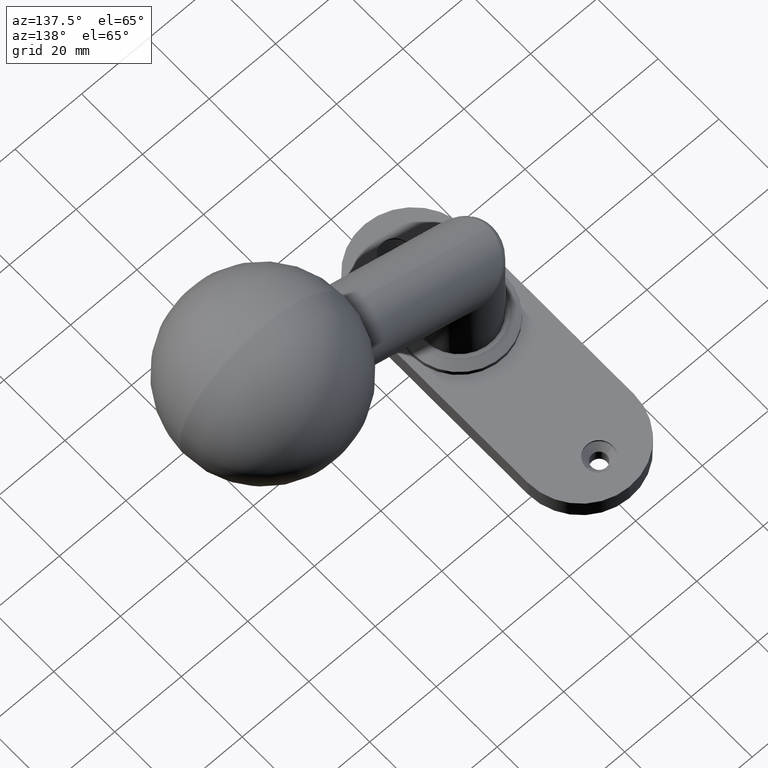
[diagram: clean part render]
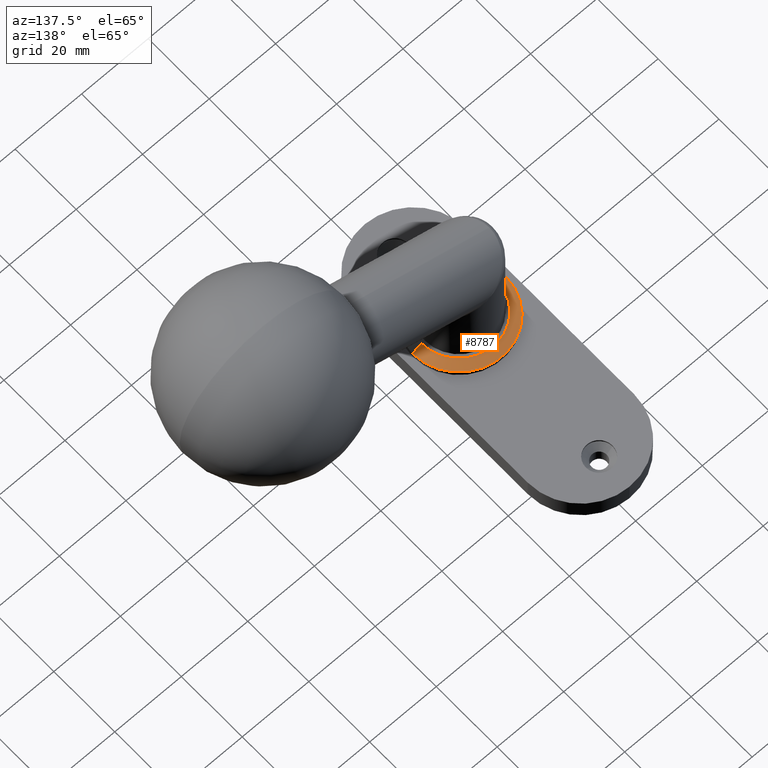
[diagram: same view with one face highlighted and labeled with its STEP entity id]
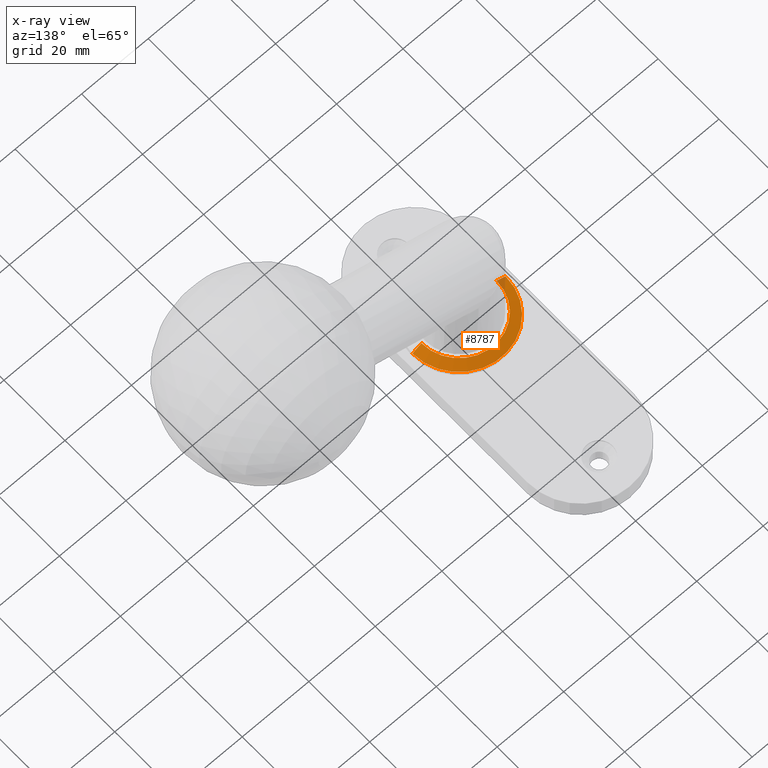
[diagram: x-ray of the same camera — body ghosted, the highlighted face saturated]
A machine part, auxiliary view. The second image highlights one B-rep face of the part: STEP entity #8787.
The next image is the same camera in x-ray: the body ghosted, the highlighted face saturated — about 3% of this face is hidden behind the body in this view.
In plain terms, the highlighted conical surface has half-angle 60.945 deg.
Its self-contained STEP definition (entity closure, byte-faithful):
#128 = CARTESIAN_POINT ( 'NONE',  ( 0.000000000000000000, 0.000000000000000000, 3.000000000000000000 ) ) ;
#668 = EDGE_CURVE ( 'NONE', #16286, #10250, #800, .T. ) ;
#799 = ORIENTED_EDGE ( 'NONE', *, *, #4505, .F. ) ;
#800 = LINE ( 'NONE', #13007, #1209 ) ;
#1130 = CARTESIAN_POINT ( 'NONE',  ( 0.000000000000000000, 0.000000000000000000, 1.500000000000000000 ) ) ;
#1209 = VECTOR ( 'NONE', #9092, 1000.000000000000114 ) ;
#2533 = LINE ( 'NONE', #14199, #11509 ) ;
#3865 = ORIENTED_EDGE ( 'NONE', *, *, #668, .T. ) ;
#4505 = EDGE_CURVE ( 'NONE', #5170, #11387, #2533, .T. ) ;
#4835 = CARTESIAN_POINT ( 'NONE',  ( -11.30000000000000071, 0.000000000000000000, 3.000000000000000000 ) ) ;
#5060 = DIRECTION ( 'NONE',  ( -0.000000000000000000, -0.000000000000000000, -1.000000000000000000 ) ) ;
#5170 = VERTEX_POINT ( 'NONE', #4835 ) ;
#5872 = AXIS2_PLACEMENT_3D ( 'NONE', #128, #9176, #6605 ) ;
#6605 = DIRECTION ( 'NONE',  ( -1.000000000000000000, 0.000000000000000000, 0.000000000000000000 ) ) ;
#7718 = DIRECTION ( 'NONE',  ( -1.000000000000000000, 0.000000000000000000, 0.000000000000000000 ) ) ;
#7827 = DIRECTION ( 'NONE',  ( -0.000000000000000000, -0.000000000000000000, -1.000000000000000000 ) ) ;
#7931 = CARTESIAN_POINT ( 'NONE',  ( -14.00000000000000000, 0.000000000000000000, 1.500000000000000000 ) ) ;
#8616 = ORIENTED_EDGE ( 'NONE', *, *, #12722, .F. ) ;
#8787 = ADVANCED_FACE ( 'NONE', ( #14474 ), #13451, .T. ) ;
#9092 = DIRECTION ( 'NONE',  ( 0.8741572761215375964, 1.070533910153610051E-16, -0.4856429311786321645 ) ) ;
#9176 = DIRECTION ( 'NONE',  ( -0.000000000000000000, -0.000000000000000000, -1.000000000000000000 ) ) ;
#10250 = VERTEX_POINT ( 'NONE', #14853 ) ;
#11387 = VERTEX_POINT ( 'NONE', #7931 ) ;
#11509 = VECTOR ( 'NONE', #12892, 1000.000000000000114 ) ;
#12329 = AXIS2_PLACEMENT_3D ( 'NONE', #15573, #7827, #7718 ) ;
#12722 = EDGE_CURVE ( 'NONE', #11387, #10250, #16285, .T. ) ;
#12765 = ORIENTED_EDGE ( 'NONE', *, *, #16603, .T. ) ;
#12892 = DIRECTION ( 'NONE',  ( -0.8741572761215375964, 0.000000000000000000, -0.4856429311786321645 ) ) ;
#13007 = CARTESIAN_POINT ( 'NONE',  ( 14.00000000000000000, 1.714505518806294638E-15, 1.500000000000000000 ) ) ;
#13367 = CIRCLE ( 'NONE', #5872, 11.30000000000000071 ) ;
#13451 = CONICAL_SURFACE ( 'NONE', #15228, 14.00000000000000000, 1.063697822402559501 ) ;
#14029 = DIRECTION ( 'NONE',  ( -1.000000000000000000, 0.000000000000000000, 0.000000000000000000 ) ) ;
#14199 = CARTESIAN_POINT ( 'NONE',  ( -14.00000000000000000, 0.000000000000000000, 1.500000000000000000 ) ) ;
#14474 = FACE_OUTER_BOUND ( 'NONE', #15289, .T. ) ;
#14853 = CARTESIAN_POINT ( 'NONE',  ( 14.00000000000000000, 1.714505518806294638E-15, 1.500000000000000000 ) ) ;
#15228 = AXIS2_PLACEMENT_3D ( 'NONE', #1130, #5060, #14029 ) ;
#15289 = EDGE_LOOP ( 'NONE', ( #12765, #3865, #8616, #799 ) ) ;
#15573 = CARTESIAN_POINT ( 'NONE',  ( 0.000000000000000000, 0.000000000000000000, 1.500000000000000000 ) ) ;
#16099 = CARTESIAN_POINT ( 'NONE',  ( 11.30000000000000071, 1.549178200921401951E-15, 3.000000000000000000 ) ) ;
#16285 = CIRCLE ( 'NONE', #12329, 14.00000000000000000 ) ;
#16286 = VERTEX_POINT ( 'NONE', #16099 ) ;
#16603 = EDGE_CURVE ( 'NONE', #5170, #16286, #13367, .T. ) ;